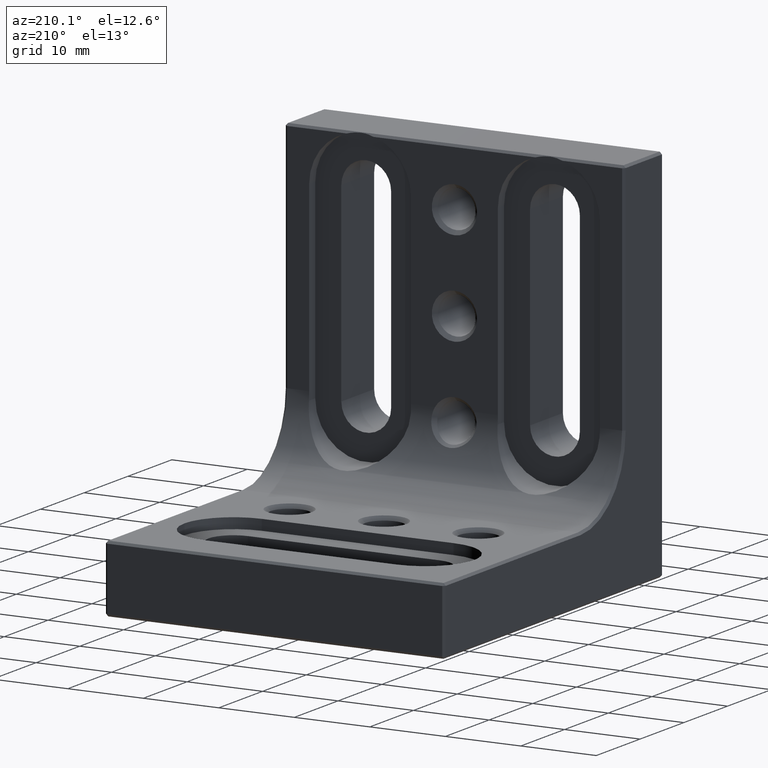
[diagram: clean part render]
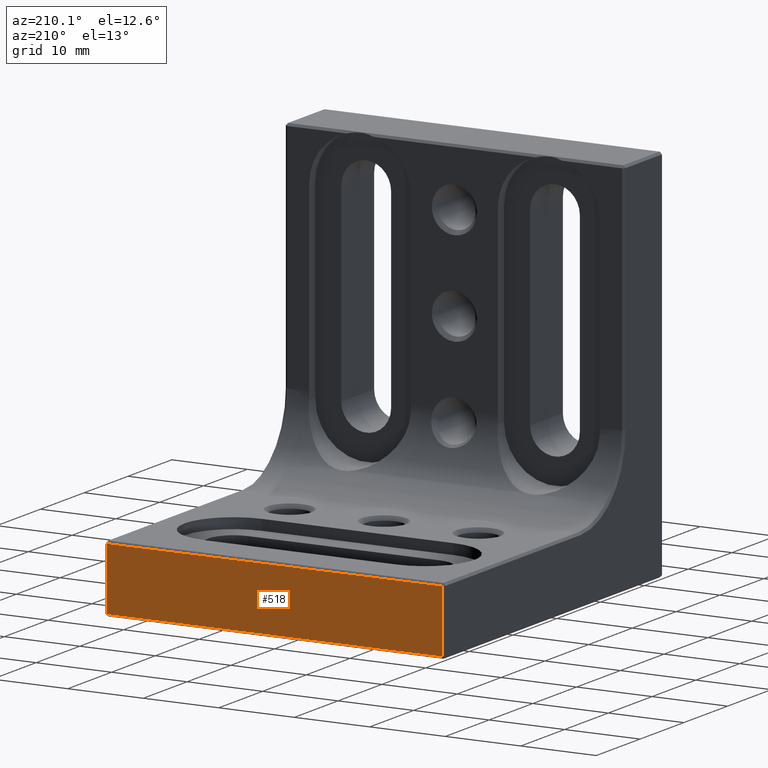
[diagram: same view with one face highlighted and labeled with its STEP entity id]
A machine part, auxiliary view. The second image highlights one B-rep face of the part: STEP entity #518.
In plain terms, the highlighted planar face has unit normal (0, -1, 0).
Its self-contained STEP definition (entity closure, byte-faithful):
#50 = VERTEX_POINT ( 'NONE', #3366 ) ;
#53 = ORIENTED_EDGE ( 'NONE', *, *, #1718, .T. ) ;
#81 = LINE ( 'NONE', #1615, #1997 ) ;
#184 = LINE ( 'NONE', #1396, #2747 ) ;
#188 = ORIENTED_EDGE ( 'NONE', *, *, #1686, .T. ) ;
#518 = ADVANCED_FACE ( 'NONE', ( #710 ), #1635, .F. ) ;
#592 = CARTESIAN_POINT ( 'NONE',  ( 22.20000000000000284, 50.00000000000000000, 8.600000000000003197 ) ) ;
#710 = FACE_OUTER_BOUND ( 'NONE', #2303, .T. ) ;
#730 = DIRECTION ( 'NONE',  ( 0.000000000000000000, -1.000000000000000000, 0.000000000000000000 ) ) ;
#1165 = EDGE_CURVE ( 'NONE', #2199, #1806, #1936, .T. ) ;
#1269 = DIRECTION ( 'NONE',  ( 0.000000000000000000, 0.000000000000000000, 1.000000000000000000 ) ) ;
#1396 = CARTESIAN_POINT ( 'NONE',  ( 22.50000000000000000, 50.00000000000000000, 8.600000000000003197 ) ) ;
#1615 = CARTESIAN_POINT ( 'NONE',  ( -22.20000000000000284, 50.00000000000000000, 0.000000000000000000 ) ) ;
#1635 = PLANE ( 'NONE',  #3028 ) ;
#1686 = EDGE_CURVE ( 'NONE', #3104, #2199, #2821, .T. ) ;
#1718 = EDGE_CURVE ( 'NONE', #50, #3104, #184, .T. ) ;
#1806 = VERTEX_POINT ( 'NONE', #1965 ) ;
#1882 = DIRECTION ( 'NONE',  ( 0.000000000000000000, -0.000000000000000000, -1.000000000000000000 ) ) ;
#1936 = LINE ( 'NONE', #3456, #2166 ) ;
#1965 = CARTESIAN_POINT ( 'NONE',  ( -22.20000000000000284, 50.00000000000000000, 0.2999999999999945488 ) ) ;
#1997 = VECTOR ( 'NONE', #1269, 1000.000000000000000 ) ;
#2115 = EDGE_CURVE ( 'NONE', #1806, #50, #81, .T. ) ;
#2166 = VECTOR ( 'NONE', #3110, 1000.000000000000000 ) ;
#2199 = VERTEX_POINT ( 'NONE', #2786 ) ;
#2215 = DIRECTION ( 'NONE',  ( 0.000000000000000000, 0.000000000000000000, -1.000000000000000000 ) ) ;
#2303 = EDGE_LOOP ( 'NONE', ( #2368, #2997, #53, #188 ) ) ;
#2368 = ORIENTED_EDGE ( 'NONE', *, *, #1165, .T. ) ;
#2747 = VECTOR ( 'NONE', #2878, 1000.000000000000000 ) ;
#2786 = CARTESIAN_POINT ( 'NONE',  ( 22.20000000000000284, 50.00000000000000000, 0.2999999999999945488 ) ) ;
#2821 = LINE ( 'NONE', #3160, #3049 ) ;
#2878 = DIRECTION ( 'NONE',  ( 1.000000000000000000, 0.000000000000000000, 0.000000000000000000 ) ) ;
#2997 = ORIENTED_EDGE ( 'NONE', *, *, #2115, .T. ) ;
#3028 = AXIS2_PLACEMENT_3D ( 'NONE', #3596, #730, #1882 ) ;
#3049 = VECTOR ( 'NONE', #2215, 1000.000000000000000 ) ;
#3104 = VERTEX_POINT ( 'NONE', #592 ) ;
#3110 = DIRECTION ( 'NONE',  ( -1.000000000000000000, 0.000000000000000000, 0.000000000000000000 ) ) ;
#3160 = CARTESIAN_POINT ( 'NONE',  ( 22.20000000000000284, 50.00000000000000000, 0.000000000000000000 ) ) ;
#3366 = CARTESIAN_POINT ( 'NONE',  ( -22.20000000000000284, 50.00000000000000000, 8.600000000000003197 ) ) ;
#3456 = CARTESIAN_POINT ( 'NONE',  ( 22.50000000000000000, 50.00000000000000000, 0.2999999999999945488 ) ) ;
#3596 = CARTESIAN_POINT ( 'NONE',  ( 22.50000000000000000, 50.00000000000000000, 0.000000000000000000 ) ) ;